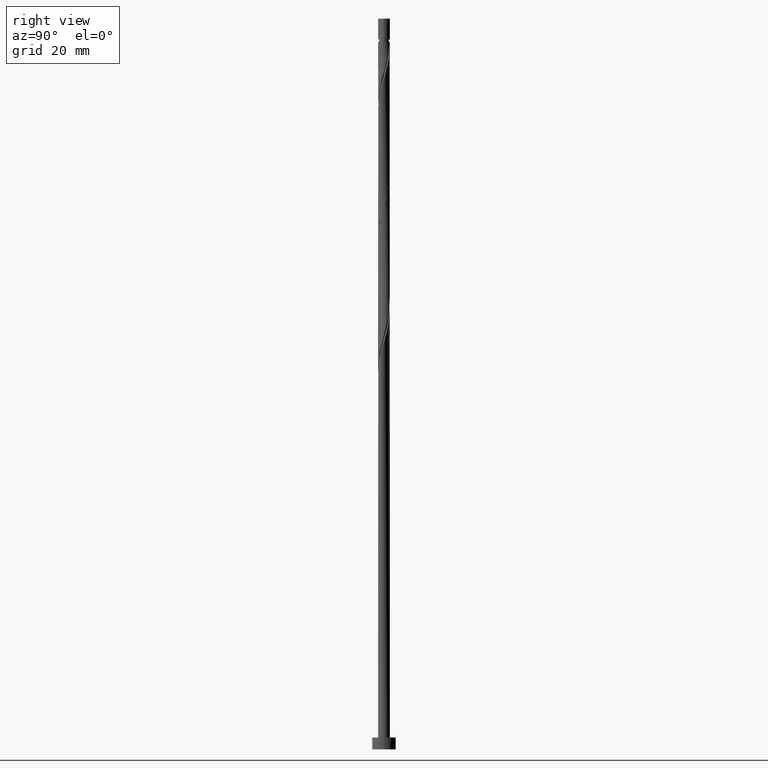
[diagram: clean part render]
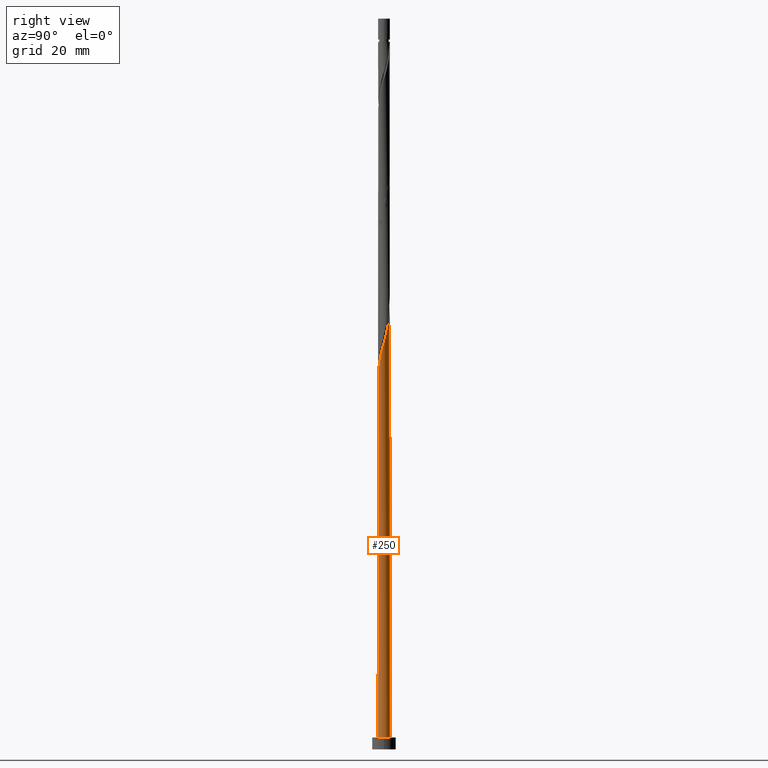
[diagram: same view with one face highlighted and labeled with its STEP entity id]
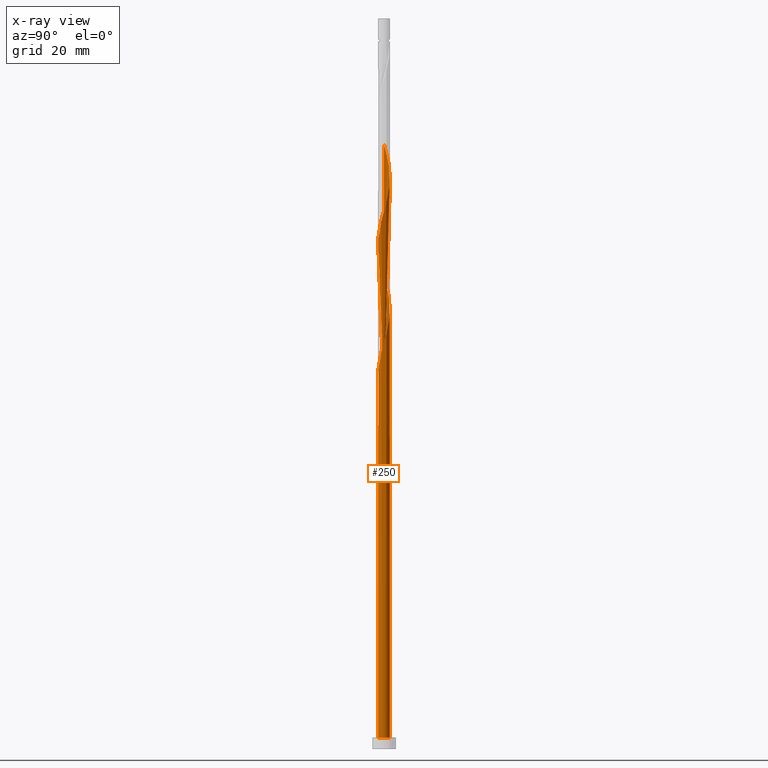
[diagram: x-ray of the same camera — body ghosted, the highlighted face saturated]
A machine part, right view. The second image highlights one B-rep face of the part: STEP entity #250.
The next image is the same camera in x-ray: the body ghosted, the highlighted face saturated — about 0% of this face is hidden behind the body in this view.
In plain terms, the highlighted cylindrical surface (bore or boss wall) has radius 1.5 mm, axis along (-0, -0, -1).
Its self-contained STEP definition (entity closure, byte-faithful):
#8 = CARTESIAN_POINT ( 'NONE',  ( -1.500000000000000666, -2.033714684332305775E-15, 88.19879343098972413 ) ) ;
#29 = CARTESIAN_POINT ( 'NONE',  ( -1.250515677536281789, 0.8283782591521714478, 149.6352267757796426 ) ) ;
#48 = EDGE_CURVE ( 'NONE', #1031, #288, #1270, .T. ) ;
#58 = CARTESIAN_POINT ( 'NONE',  ( 0.2892446148792533478, 1.485037173957476808, 110.0518934424463140 ) ) ;
#62 = ORIENTED_EDGE ( 'NONE', *, *, #1277, .F. ) ;
#67 = CARTESIAN_POINT ( 'NONE',  ( 0.8455530274166268567, -1.254606684622249890, 97.55189344244634242 ) ) ;
#68 = CARTESIAN_POINT ( 'NONE',  ( 1.123809227997134341, 0.9935053190942124690, 139.9130045535574709 ) ) ;
#73 = CARTESIAN_POINT ( 'NONE',  ( 0.8283782591521714478, 1.250515677536281345, 107.9685601091129854 ) ) ;
#79 = CARTESIAN_POINT ( 'NONE',  ( -0.4920254025854592372, 1.430702225651051762, 146.1630045535574141 ) ) ;
#80 = CARTESIAN_POINT ( 'NONE',  ( -0.4920254025854592372, 1.430702225651051762, 112.8296712202240997 ) ) ;
#96 = CARTESIAN_POINT ( 'NONE',  ( -1.123809227997133231, -0.9935053190942132462, 123.2463378868907853 ) ) ;
#106 = CARTESIAN_POINT ( 'NONE',  ( 0.4920254025854589042, -1.430702225651052428, 129.4963378868907284 ) ) ;
#108 = DIRECTION ( 'NONE',  ( -0.000000000000000000, -0.000000000000000000, -1.000000000000000000 ) ) ;
#113 = CARTESIAN_POINT ( 'NONE',  ( -1.342654455136648162, 0.6687892150010430470, 85.74633788689078528 ) ) ;
#114 = CARTESIAN_POINT ( 'NONE',  ( -0.8283782591521714478, -1.250515677536281345, 124.6352267757796426 ) ) ;
#122 = CARTESIAN_POINT ( 'NONE',  ( -1.123809227997131455, 0.9935053190942124690, 84.35744899800187113 ) ) ;
#144 = ORIENTED_EDGE ( 'NONE', *, *, #698, .T. ) ;
#171 = DIRECTION ( 'NONE',  ( 0.000000000000000000, 0.000000000000000000, 1.000000000000000000 ) ) ;
#181 = CARTESIAN_POINT ( 'NONE',  ( -1.470000000000002416, -0.2984962311319870332, 87.13522677577964259 ) ) ;
#185 = CARTESIAN_POINT ( 'NONE',  ( -1.430702225651052428, -0.4920254025854589042, 87.82967122022408546 ) ) ;
#186 = CARTESIAN_POINT ( 'NONE',  ( -0.9930117713720179040, -1.141457610771798858, 123.9407823313351997 ) ) ;
#192 = CARTESIAN_POINT ( 'NONE',  ( 0.9935053190942132462, -1.123809227997133231, 98.24633788689075686 ) ) ;
#193 = CARTESIAN_POINT ( 'NONE',  ( -0.6687892150010432690, 1.342654455136650826, 113.5241156646685567 ) ) ;
#201 = CARTESIAN_POINT ( 'NONE',  ( -0.2984962311319867556, 1.470000000000002416, 112.1352267757796852 ) ) ;
#207 = CARTESIAN_POINT ( 'NONE',  ( -1.470000000000000195, 0.2984962311319869777, 87.13522677577965680 ) ) ;
#218 = CARTESIAN_POINT ( 'NONE',  ( -1.430702225651049320, 0.4920254025854589042, 86.44078233133521394 ) ) ;
#226 = VERTEX_POINT ( 'NONE', #1481 ) ;
#229 = CARTESIAN_POINT ( 'NONE',  ( 0.8455530274166268567, -1.254606684622249890, 130.8852267757796426 ) ) ;
#240 = CARTESIAN_POINT ( 'NONE',  ( -1.497167474153214384, 0.09213877760036907894, 85.74633788689072844 ) ) ;
#241 = CARTESIAN_POINT ( 'NONE',  ( -1.141457610771799080, 0.9930117713720176820, 115.6074489980018711 ) ) ;
#248 = CARTESIAN_POINT ( 'NONE',  ( 0.1049670596785149818, 1.509297774348950627, 79.49633788689075686 ) ) ;
#250 = ADVANCED_FACE ( 'NONE', ( #1356 ), #461, .T. ) ;
#285 = CARTESIAN_POINT ( 'NONE',  ( -1.359573744300764053, 0.6637447469323254357, 150.3296712202241281 ) ) ;
#288 = VERTEX_POINT ( 'NONE', #1487 ) ;
#291 = CARTESIAN_POINT ( 'NONE',  ( 1.500000000000000222, 0.000000000000000000, 3.000000000000000000 ) ) ;
#296 = VERTEX_POINT ( 'NONE', #1128 ) ;
#306 = CARTESIAN_POINT ( 'NONE',  ( -1.342654455136650826, -0.6687892150010431580, 88.52411566466854254 ) ) ;
#310 = CARTESIAN_POINT ( 'NONE',  ( 0.09213877760037003650, 1.497167474153214384, 110.7463378868907569 ) ) ;
#311 = CARTESIAN_POINT ( 'NONE',  ( -1.254606684622249890, -0.8455530274166273008, 122.5518934424463282 ) ) ;
#318 = CARTESIAN_POINT ( 'NONE',  ( 1.497167474153214384, -0.09213877760036998099, 135.7463378868907569 ) ) ;
#325 = CARTESIAN_POINT ( 'NONE',  ( 0.4764946809057895583, 1.422305459129119987, 109.3574489980018569 ) ) ;
#349 = CARTESIAN_POINT ( 'NONE',  ( 0.2984962311319872552, 1.469999999999999973, 78.80189344244631400 ) ) ;
#353 = CARTESIAN_POINT ( 'NONE',  ( -1.497167474153214384, 0.09213877760036907894, 119.0796712202240712 ) ) ;
#358 = CARTESIAN_POINT ( 'NONE',  ( -0.2984962311319867001, 1.470000000000002194, 78.80189344244631400 ) ) ;
#369 = CARTESIAN_POINT ( 'NONE',  ( -1.500000000000000444, -2.033714684332305775E-15, 88.19879343098972413 ) ) ;
#384 = CARTESIAN_POINT ( 'NONE',  ( 0.000000000000000000, 0.000000000000000000, 3.000000000000000000 ) ) ;
#390 =( BOUNDED_CURVE ( )  B_SPLINE_CURVE ( 2, ( #358, #970, #1000, #839, #867, #1469, #1368, #1358, #1237, #732, #240, #749, #1107 ),
 .UNSPECIFIED., .F., .T. ) 
 B_SPLINE_CURVE_WITH_KNOTS ( ( 3, 2, 2, 2, 2, 2, 3 ),
 ( 0.000000000000000000, 0.01041666666666662966, 0.02083333333333337034, 0.03125000000000000000, 0.04166666666666662966, 0.05208333333333337034, 0.05453176698144632933 ),
 .UNSPECIFIED. ) 
 CURVE ( )  GEOMETRIC_REPRESENTATION_ITEM ( )  RATIONAL_B_SPLINE_CURVE ( ( 0.9090909090909415902, 0.9013135103398597359, 0.9090909090909415902, 0.9013135103398597359, 0.9090909090909415902, 0.9013135103398597359, 0.9090909090909415902, 0.9013135103398597359, 0.9090909090909415902, 0.9013135103398597359, 0.9090909090909415902, 0.9072628343904353132, 0.9062941362546617086 ) ) 
 REPRESENTATION_ITEM ( '' )  );
#435 = CARTESIAN_POINT ( 'NONE',  ( 0.2892446148792533478, 1.485037173957476808, 143.3852267757796426 ) ) ;
#436 = CARTESIAN_POINT ( 'NONE',  ( 0.6687892150010429360, -1.342654455136651048, 96.85744899800188534 ) ) ;
#438 = CARTESIAN_POINT ( 'NONE',  ( 0.6687892150010429360, -1.342654455136651048, 130.1907823313352139 ) ) ;
#444 = CARTESIAN_POINT ( 'NONE',  ( 1.141457610771798858, -0.9930117713720179040, 98.94078233133518552 ) ) ;
#446 = CARTESIAN_POINT ( 'NONE',  ( -1.470000000000002416, -0.2984962311319870332, 120.4685601091129996 ) ) ;
#452 =( BOUNDED_CURVE ( )  B_SPLINE_CURVE ( 2, ( #369, #499, #207, #218, #113, #740, #122, #1483, #1458, #614, #962, #1345, #492, #248, #642 ),
 .UNSPECIFIED., .F., .T. ) 
 B_SPLINE_CURVE_WITH_KNOTS ( ( 3, 2, 2, 2, 2, 2, 2, 3 ),
 ( 0.9295317669814462391, 0.9375000000000000000, 0.9479166666666666297, 0.9583333333333333703, 0.9687500000000000000, 0.9791666666666666297, 0.9895833333333333703, 1.000000000000000000 ),
 .UNSPECIFIED. ) 
 CURVE ( )  GEOMETRIC_REPRESENTATION_ITEM ( )  RATIONAL_B_SPLINE_CURVE ( ( 0.9062941362546560464, 0.9031415850403601286, 0.9090909090909357060, 0.9013135103398539627, 0.9090909090909357060, 0.9013135103398539627, 0.9090909090909357060, 0.9013135103398539627, 0.9090909090909357060, 0.9013135103398539627, 0.9090909090909357060, 0.9013135103398539627, 0.9090909090909357060, 0.9013135103398539627, 0.9090909090909357060 ) ) 
 REPRESENTATION_ITEM ( '' )  );
#458 = CARTESIAN_POINT ( 'NONE',  ( -0.8455530274166278559, 1.254606684622249890, 147.5518934424462998 ) ) ;
#461 = CYLINDRICAL_SURFACE ( 'NONE', #1441, 1.500000000000000222 ) ;
#467 = DIRECTION ( 'NONE',  ( 0.000000000000000000, -0.000000000000000000, -1.000000000000000000 ) ) ;
#484 = CARTESIAN_POINT ( 'NONE',  ( -1.359573744300764053, 0.6637447469323254357, 116.9963378868907427 ) ) ;
#492 = CARTESIAN_POINT ( 'NONE',  ( -0.09213877760036841280, 1.497167474153212829, 80.19078233133519973 ) ) ;
#493 = CARTESIAN_POINT ( 'NONE',  ( 1.342654455136651048, 0.6687892150010429360, 138.5241156646684999 ) ) ;
#498 = ORIENTED_EDGE ( 'NONE', *, *, #679, .F. ) ;
#499 = CARTESIAN_POINT ( 'NONE',  ( -1.500000000000000888, 0.1507556722888814815, 87.66536706180046679 ) ) ;
#501 = CARTESIAN_POINT ( 'NONE',  ( -1.342654455136650826, -0.6687892150010431580, 121.8574489980018853 ) ) ;
#515 = EDGE_LOOP ( 'NONE', ( #1609, #62, #923, #877, #890, #498, #1271, #144, #1622 ) ) ;
#523 = CARTESIAN_POINT ( 'NONE',  ( 0.000000000000000000, 0.000000000000000000, 3.000000000000000000 ) ) ;
#537 = DIRECTION ( 'NONE',  ( 0.000000000000000000, 0.000000000000000000, 1.000000000000000000 ) ) ;
#550 = LINE ( 'NONE', #1046, #1004 ) ;
#552 = CARTESIAN_POINT ( 'NONE',  ( -0.1049670596785133442, 1.509297774348953070, 144.7741156646685567 ) ) ;
#575 = CARTESIAN_POINT ( 'NONE',  ( -1.254606684622249890, -0.8455530274166273008, 89.21856010911297119 ) ) ;
#576 = CARTESIAN_POINT ( 'NONE',  ( -0.8455530274166278559, 1.254606684622249890, 114.2185601091129712 ) ) ;
#582 = CARTESIAN_POINT ( 'NONE',  ( 1.470000000000002416, 0.2984962311319868111, 103.8018934424463424 ) ) ;
#584 = CARTESIAN_POINT ( 'NONE',  ( 0.6637447469323259908, 1.359573744300764053, 141.9963378868907284 ) ) ;
#590 = CARTESIAN_POINT ( 'NONE',  ( 0.6637447469323259908, 1.359573744300764053, 108.6630045535574141 ) ) ;
#596 = CARTESIAN_POINT ( 'NONE',  ( 1.509297774348953070, 0.1049670596785135107, 103.1074489980018711 ) ) ;
#614 = CARTESIAN_POINT ( 'NONE',  ( -0.6637447469323241034, 1.359573744300762055, 82.27411566466854254 ) ) ;
#616 = CARTESIAN_POINT ( 'NONE',  ( -0.09213877760036917608, -1.497167474153214384, 127.4130045535573998 ) ) ;
#626 = CARTESIAN_POINT ( 'NONE',  ( 1.509297774348953070, 0.1049670596785135107, 136.4407823313351855 ) ) ;
#634 = CARTESIAN_POINT ( 'NONE',  ( -1.500000000000000222, 0.000000000000000000, 184.6699999999999875 ) ) ;
#636 = CARTESIAN_POINT ( 'NONE',  ( 1.359573744300764053, -0.6637447469323257687, 133.6630045535574141 ) ) ;
#642 = CARTESIAN_POINT ( 'NONE',  ( 0.2984962311319872552, 1.469999999999999973, 78.80189344244631400 ) ) ;
#651 = VERTEX_POINT ( 'NONE', #1228 ) ;
#655 = CARTESIAN_POINT ( 'NONE',  ( -1.497167474153214384, 0.09213877760036907894, 152.4130045535574709 ) ) ;
#677 =( BOUNDED_CURVE ( )  B_SPLINE_CURVE ( 2, ( #1331, #1201, #181, #185, #306, #575, #1310, #1587, #1427, #814, #825, #1566, #707, #806, #694, #714, #436, #67, #192, #444, #1324, #1068, #1194, #940, #955, #596, #582, #1451, #1433, #1581, #947, #1216, #73, #590, #325, #58, #310, #1316, #201, #80, #193, #576, #1318, #241, #869, #484, #985, #1246, #353, #1354, #446, #1485, #501, #311, #96, #186, #114, #1610, #700, #949, #616, #860, #1070, #106, #438, #229, #941, #1442, #742, #636, #1568, #751, #318, #626, #1125, #1325, #493, #1435, #68, #816, #991, #584, #1078, #435, #1200, #552, #939, #79, #954, #458, #964, #1460, #29, #285, #1391, #775, #655, #1137, #1003 ),
 .UNSPECIFIED., .F., .T. ) 
 B_SPLINE_CURVE_WITH_KNOTS ( ( 3, 2, 2, 2, 2, 2, 2, 2, 2, 2, 2, 2, 2, 2, 2, 2, 2, 2, 2, 2, 2, 2, 2, 2, 2, 2, 2, 2, 2, 2, 2, 2, 2, 2, 2, 2, 2, 2, 2, 2, 2, 2, 2, 2, 2, 2, 2, 2, 2, 3 ),
 ( 0.05453176698144632240, 0.06250000000000000000, 0.07291666666666662966, 0.08333333333333337034, 0.09375000000000000000, 0.1041666666666666297, 0.1145833333333333703, 0.1250000000000000000, 0.1354166666666666297, 0.1458333333333333703, 0.1562500000000000000, 0.1666666666666666297, 0.1770833333333333703, 0.1875000000000000000, 0.1979166666666666297, 0.2083333333333333703, 0.2187500000000000000, 0.2291666666666666297, 0.2395833333333333703, 0.2500000000000000000, 0.2604166666666666297, 0.2708333333333333703, 0.2812500000000000000, 0.2916666666666666297, 0.3020833333333333703, 0.3125000000000000000, 0.3229166666666666297, 0.3333333333333333703, 0.3437500000000000000, 0.3541666666666666297, 0.3645833333333333703, 0.3750000000000000000, 0.3854166666666666297, 0.3958333333333333703, 0.4062500000000000000, 0.4166666666666666297, 0.4270833333333333703, 0.4375000000000000000, 0.4479166666666666297, 0.4583333333333333703, 0.4687500000000000000, 0.4791666666666666297, 0.4895833333333333703, 0.5000000000000000000, 0.5104166666666667407, 0.5208333333333332593, 0.5312500000000000000, 0.5416666666666667407, 0.5520833333333332593, 0.5545317669814464612 ),
 .UNSPECIFIED. ) 
 CURVE ( )  GEOMETRIC_REPRESENTATION_ITEM ( )  RATIONAL_B_SPLINE_CURVE ( ( 0.9062941362546617086, 0.9031415850403660128, 0.9090909090909415902, 0.9013135103398597359, 0.9090909090909415902, 0.9013135103398597359, 0.9090909090909415902, 0.9013135103398597359, 0.9090909090909415902, 0.9013135103398597359, 0.9090909090909415902, 0.9013135103398597359, 0.9090909090909415902, 0.9013135103398597359, 0.9090909090909415902, 0.9013135103398597359, 0.9090909090909415902, 0.9013135103398597359, 0.9090909090909415902, 0.9013135103398597359, 0.9090909090909415902, 0.9013135103398597359, 0.9090909090909415902, 0.9013135103398597359, 0.9090909090909415902, 0.9013135103398597359, 0.9090909090909415902, 0.9013135103398597359, 0.9090909090909415902, 0.9013135103398597359, 0.9090909090909415902, 0.9013135103398597359, 0.9090909090909415902, 0.9013135103398597359, 0.9090909090909415902, 0.9013135103398597359, 0.9090909090909415902, 0.9013135103398597359, 0.9090909090909415902, 0.9013135103398597359, 0.9090909090909415902, 0.9013135103398597359, 0.9090909090909415902, 0.9013135103398597359, 0.9090909090909415902, 0.9013135103398597359, 0.9090909090909415902, 0.9013135103398597359, 0.9090909090909415902, 0.9013135103398597359, 0.9090909090909415902, 0.9013135103398597359, 0.9090909090909415902, 0.9013135103398597359, 0.9090909090909415902, 0.9013135103398597359, 0.9090909090909415902, 0.9013135103398597359, 0.9090909090909415902, 0.9013135103398597359, 0.9090909090909415902, 0.9013135103398597359, 0.9090909090909415902, 0.9013135103398597359, 0.9090909090909415902, 0.9013135103398597359, 0.9090909090909415902, 0.9013135103398597359, 0.9090909090909415902, 0.9013135103398597359, 0.9090909090909415902, 0.9013135103398597359, 0.9090909090909415902, 0.9013135103398597359, 0.9090909090909415902, 0.9013135103398597359, 0.9090909090909415902, 0.9013135103398597359, 0.9090909090909415902, 0.9013135103398597359, 0.9090909090909415902, 0.9013135103398597359, 0.9090909090909415902, 0.9013135103398597359, 0.9090909090909415902, 0.9013135103398597359, 0.9090909090909415902, 0.9013135103398597359, 0.9090909090909415902, 0.9013135103398597359, 0.9090909090909415902, 0.9013135103398597359, 0.9090909090909415902, 0.9013135103398597359, 0.9090909090909415902, 0.9013135103398597359, 0.9090909090909415902, 0.9072628343904350912, 0.9062941362546617086 ) ) 
 REPRESENTATION_ITEM ( '' )  );
#679 = EDGE_CURVE ( 'NONE', #651, #288, #1100, .T. ) ;
#681 = DIRECTION ( 'NONE',  ( 1.000000000000000000, 0.000000000000000000, 0.000000000000000000 ) ) ;
#694 = CARTESIAN_POINT ( 'NONE',  ( 0.2984962311319869221, -1.470000000000002416, 95.46856010911295698 ) ) ;
#698 = EDGE_CURVE ( 'NONE', #296, #847, #932, .T. ) ;
#700 = CARTESIAN_POINT ( 'NONE',  ( -0.4764946809057893917, -1.422305459129119987, 126.0241156646685283 ) ) ;
#707 = CARTESIAN_POINT ( 'NONE',  ( -0.09213877760036917608, -1.497167474153214384, 94.07967122022409967 ) ) ;
#714 = CARTESIAN_POINT ( 'NONE',  ( 0.4920254025854589042, -1.430702225651052428, 96.16300455355742827 ) ) ;
#723 = VECTOR ( 'NONE', #879, 1000.000000000000000 ) ;
#732 = CARTESIAN_POINT ( 'NONE',  ( -1.485037173957477030, 0.2892446148792525706, 85.05189344244631400 ) ) ;
#740 = CARTESIAN_POINT ( 'NONE',  ( -1.254606684622247226, 0.8455530274166267457, 85.05189344244629979 ) ) ;
#742 = CARTESIAN_POINT ( 'NONE',  ( 1.250515677536281123, -0.8283782591521721139, 132.9685601091129854 ) ) ;
#749 = CARTESIAN_POINT ( 'NONE',  ( -1.500000000000001776, 0.04611292748650985124, 85.90849643254139778 ) ) ;
#750 = EDGE_CURVE ( 'NONE', #1410, #847, #452, .T. ) ;
#751 = CARTESIAN_POINT ( 'NONE',  ( 1.485037173957476808, -0.2892446148792533478, 135.0518934424462998 ) ) ;
#767 = EDGE_CURVE ( 'NONE', #296, #651, #390, .T. ) ;
#775 = CARTESIAN_POINT ( 'NONE',  ( -1.485037173957477030, 0.2892446148792525706, 151.7185601091129570 ) ) ;
#806 = CARTESIAN_POINT ( 'NONE',  ( 0.1049670596785142740, -1.509297774348953070, 94.77411566466851411 ) ) ;
#814 = CARTESIAN_POINT ( 'NONE',  ( -0.6637447469323257687, -1.359573744300764275, 91.99633788689077107 ) ) ;
#816 = CARTESIAN_POINT ( 'NONE',  ( 0.9930117713720185701, 1.141457610771798192, 140.6074489980018711 ) ) ;
#825 = CARTESIAN_POINT ( 'NONE',  ( -0.4764946809057893917, -1.422305459129119987, 92.69078233133524236 ) ) ;
#828 = AXIS2_PLACEMENT_3D ( 'NONE', #523, #171, #681 ) ;
#839 = CARTESIAN_POINT ( 'NONE',  ( -0.8455530274166278559, 1.254606684622249890, 80.88522677577965680 ) ) ;
#847 = VERTEX_POINT ( 'NONE', #349 ) ;
#860 = CARTESIAN_POINT ( 'NONE',  ( 0.1049670596785142740, -1.509297774348953070, 128.1074489980018427 ) ) ;
#867 = CARTESIAN_POINT ( 'NONE',  ( -0.9935053190942132462, 1.123809227997133231, 81.57967122022408546 ) ) ;
#869 = CARTESIAN_POINT ( 'NONE',  ( -1.250515677536281789, 0.8283782591521714478, 116.3018934424463282 ) ) ;
#877 = ORIENTED_EDGE ( 'NONE', *, *, #1173, .T. ) ;
#879 = DIRECTION ( 'NONE',  ( -0.000000000000000000, -0.000000000000000000, -1.000000000000000000 ) ) ;
#890 = ORIENTED_EDGE ( 'NONE', *, *, #48, .T. ) ;
#894 = DIRECTION ( 'NONE',  ( 1.000000000000000000, 0.000000000000000000, 0.000000000000000000 ) ) ;
#918 = EDGE_CURVE ( 'NONE', #226, #1410, #550, .T. ) ;
#923 = ORIENTED_EDGE ( 'NONE', *, *, #679, .T. ) ;
#932 = CIRCLE ( 'NONE', #1044, 1.500000000000000222 ) ;
#939 = CARTESIAN_POINT ( 'NONE',  ( -0.2984962311319867556, 1.470000000000002416, 145.4685601091129854 ) ) ;
#940 = CARTESIAN_POINT ( 'NONE',  ( 1.485037173957476808, -0.2892446148792533478, 101.7185601091129712 ) ) ;
#941 = CARTESIAN_POINT ( 'NONE',  ( 0.9935053190942132462, -1.123809227997133231, 131.5796712202240997 ) ) ;
#947 = CARTESIAN_POINT ( 'NONE',  ( 1.123809227997134341, 0.9935053190942124690, 106.5796712202240712 ) ) ;
#949 = CARTESIAN_POINT ( 'NONE',  ( -0.2892446148792525706, -1.485037173957477030, 126.7185601091129712 ) ) ;
#954 = CARTESIAN_POINT ( 'NONE',  ( -0.6687892150010432690, 1.342654455136650826, 146.8574489980018711 ) ) ;
#955 = CARTESIAN_POINT ( 'NONE',  ( 1.497167474153214384, -0.09213877760036998099, 102.4130045535574283 ) ) ;
#962 = CARTESIAN_POINT ( 'NONE',  ( -0.4764946809057878929, 1.422305459129118654, 81.57967122022411388 ) ) ;
#964 = CARTESIAN_POINT ( 'NONE',  ( -0.9935053190942132462, 1.123809227997133231, 148.2463378868907853 ) ) ;
#965 = CARTESIAN_POINT ( 'NONE',  ( 0.000000000000000000, 0.000000000000000000, 184.6699999999999875 ) ) ;
#970 = CARTESIAN_POINT ( 'NONE',  ( -0.4920254025854592372, 1.430702225651051762, 79.49633788689074265 ) ) ;
#985 = CARTESIAN_POINT ( 'NONE',  ( -1.422305459129120209, 0.4764946809057891697, 117.6907823313351713 ) ) ;
#989 = CARTESIAN_POINT ( 'NONE',  ( 0.000000000000000000, 0.000000000000000000, 78.80189344244631400 ) ) ;
#991 = CARTESIAN_POINT ( 'NONE',  ( 0.8283782591521714478, 1.250515677536281345, 141.3018934424463282 ) ) ;
#1000 = CARTESIAN_POINT ( 'NONE',  ( -0.6687892150010432690, 1.342654455136650826, 80.19078233133521394 ) ) ;
#1003 = CARTESIAN_POINT ( 'NONE',  ( -1.500000000000002220, -9.645190966134766424E-16, 152.7383267872363035 ) ) ;
#1004 = VECTOR ( 'NONE', #1171, 1000.000000000000000 ) ;
#1031 = VERTEX_POINT ( 'NONE', #291 ) ;
#1044 = AXIS2_PLACEMENT_3D ( 'NONE', #989, #467, #1618 ) ;
#1046 = CARTESIAN_POINT ( 'NONE',  ( -1.500000000000000222, 0.000000000000000000, 184.6699999999999875 ) ) ;
#1068 = CARTESIAN_POINT ( 'NONE',  ( 1.359573744300764053, -0.6637447469323257687, 100.3296712202240997 ) ) ;
#1070 = CARTESIAN_POINT ( 'NONE',  ( 0.2984962311319869221, -1.470000000000002416, 128.8018934424462998 ) ) ;
#1078 = CARTESIAN_POINT ( 'NONE',  ( 0.4764946809057895583, 1.422305459129119987, 142.6907823313352424 ) ) ;
#1100 = LINE ( 'NONE', #634, #723 ) ;
#1107 = CARTESIAN_POINT ( 'NONE',  ( -1.500000000000002442, -1.457993983252930781E-15, 86.07166012056956106 ) ) ;
#1125 = CARTESIAN_POINT ( 'NONE',  ( 1.470000000000002416, 0.2984962311319868111, 137.1352267757796426 ) ) ;
#1128 = CARTESIAN_POINT ( 'NONE',  ( -0.2984962311319867001, 1.470000000000002194, 78.80189344244631400 ) ) ;
#1137 = CARTESIAN_POINT ( 'NONE',  ( -1.500000000000002665, 0.04611292748650563933, 152.5751630992081687 ) ) ;
#1171 = DIRECTION ( 'NONE',  ( -0.000000000000000000, -0.000000000000000000, -1.000000000000000000 ) ) ;
#1173 = EDGE_CURVE ( 'NONE', #288, #1031, #1261, .T. ) ;
#1194 = CARTESIAN_POINT ( 'NONE',  ( 1.422305459129120209, -0.4764946809057895583, 101.0241156646685141 ) ) ;
#1200 = CARTESIAN_POINT ( 'NONE',  ( 0.09213877760037003650, 1.497167474153214384, 144.0796712202240712 ) ) ;
#1201 = CARTESIAN_POINT ( 'NONE',  ( -1.500000000000002442, -0.1507556722888825362, 86.60508648975884682 ) ) ;
#1216 = CARTESIAN_POINT ( 'NONE',  ( 0.9930117713720185701, 1.141457610771798192, 107.2741156646684999 ) ) ;
#1228 = CARTESIAN_POINT ( 'NONE',  ( -1.500000000000002442, -1.457993983252930583E-15, 86.07166012056956106 ) ) ;
#1237 = CARTESIAN_POINT ( 'NONE',  ( -1.422305459129120209, 0.4764946809057891697, 84.35744899800187113 ) ) ;
#1246 = CARTESIAN_POINT ( 'NONE',  ( -1.485037173957477030, 0.2892446148792525706, 118.3852267757796568 ) ) ;
#1261 = CIRCLE ( 'NONE', #1335, 1.500000000000000222 ) ;
#1270 = CIRCLE ( 'NONE', #828, 1.500000000000000222 ) ;
#1271 = ORIENTED_EDGE ( 'NONE', *, *, #767, .F. ) ;
#1277 = EDGE_CURVE ( 'NONE', #651, #226, #677, .T. ) ;
#1310 = CARTESIAN_POINT ( 'NONE',  ( -1.123809227997133231, -0.9935053190942132462, 89.91300455355742827 ) ) ;
#1316 = CARTESIAN_POINT ( 'NONE',  ( -0.1049670596785133442, 1.509297774348953070, 111.4407823313351997 ) ) ;
#1318 = CARTESIAN_POINT ( 'NONE',  ( -0.9935053190942132462, 1.123809227997133231, 114.9130045535574425 ) ) ;
#1324 = CARTESIAN_POINT ( 'NONE',  ( 1.250515677536281123, -0.8283782591521721139, 99.63522677577967102 ) ) ;
#1325 = CARTESIAN_POINT ( 'NONE',  ( 1.430702225651052428, 0.4920254025854587931, 137.8296712202240712 ) ) ;
#1331 = CARTESIAN_POINT ( 'NONE',  ( -1.500000000000002442, -1.457993983252930781E-15, 86.07166012056956106 ) ) ;
#1335 = AXIS2_PLACEMENT_3D ( 'NONE', #384, #537, #894 ) ;
#1345 = CARTESIAN_POINT ( 'NONE',  ( -0.2892446148792517935, 1.485037173957475032, 80.88522677577965680 ) ) ;
#1354 = CARTESIAN_POINT ( 'NONE',  ( -1.509297774348953070, -0.1049670596785147181, 119.7741156646685283 ) ) ;
#1356 = FACE_OUTER_BOUND ( 'NONE', #515, .T. ) ;
#1358 = CARTESIAN_POINT ( 'NONE',  ( -1.359573744300764053, 0.6637447469323254357, 83.66300455355742827 ) ) ;
#1368 = CARTESIAN_POINT ( 'NONE',  ( -1.250515677536281789, 0.8283782591521714478, 82.96856010911295698 ) ) ;
#1391 = CARTESIAN_POINT ( 'NONE',  ( -1.422305459129120209, 0.4764946809057891697, 151.0241156646684999 ) ) ;
#1410 = VERTEX_POINT ( 'NONE', #8 ) ;
#1427 = CARTESIAN_POINT ( 'NONE',  ( -0.8283782591521714478, -1.250515677536281345, 91.30189344244631400 ) ) ;
#1433 = CARTESIAN_POINT ( 'NONE',  ( 1.342654455136651048, 0.6687892150010429360, 105.1907823313351855 ) ) ;
#1435 = CARTESIAN_POINT ( 'NONE',  ( 1.254606684622249890, 0.8455530274166268567, 139.2185601091130138 ) ) ;
#1441 = AXIS2_PLACEMENT_3D ( 'NONE', #965, #108, #1496 ) ;
#1442 = CARTESIAN_POINT ( 'NONE',  ( 1.141457610771798858, -0.9930117713720179040, 132.2741156646685283 ) ) ;
#1451 = CARTESIAN_POINT ( 'NONE',  ( 1.430702225651052428, 0.4920254025854587931, 104.4963378868907569 ) ) ;
#1458 = CARTESIAN_POINT ( 'NONE',  ( -0.8283782591521701155, 1.250515677536280013, 82.96856010911299961 ) ) ;
#1460 = CARTESIAN_POINT ( 'NONE',  ( -1.141457610771799080, 0.9930117713720176820, 148.9407823313352424 ) ) ;
#1469 = CARTESIAN_POINT ( 'NONE',  ( -1.141457610771799080, 0.9930117713720176820, 82.27411566466852832 ) ) ;
#1481 = CARTESIAN_POINT ( 'NONE',  ( -1.500000000000002220, -9.645190966134768396E-16, 152.7383267872363035 ) ) ;
#1483 = CARTESIAN_POINT ( 'NONE',  ( -0.9930117713720162387, 1.141457610771797970, 83.66300455355742827 ) ) ;
#1485 = CARTESIAN_POINT ( 'NONE',  ( -1.430702225651052428, -0.4920254025854589042, 121.1630045535574141 ) ) ;
#1487 = CARTESIAN_POINT ( 'NONE',  ( -1.500000000000000222, 0.000000000000000000, 3.000000000000000000 ) ) ;
#1496 = DIRECTION ( 'NONE',  ( -1.000000000000000000, 0.000000000000000000, 0.000000000000000000 ) ) ;
#1566 = CARTESIAN_POINT ( 'NONE',  ( -0.2892446148792525706, -1.485037173957477030, 93.38522677577964259 ) ) ;
#1568 = CARTESIAN_POINT ( 'NONE',  ( 1.422305459129120209, -0.4764946809057895583, 134.3574489980018427 ) ) ;
#1581 = CARTESIAN_POINT ( 'NONE',  ( 1.254606684622249890, 0.8455530274166268567, 105.8852267757796568 ) ) ;
#1587 = CARTESIAN_POINT ( 'NONE',  ( -0.9930117713720179040, -1.141457610771798858, 90.60744899800187113 ) ) ;
#1609 = ORIENTED_EDGE ( 'NONE', *, *, #918, .F. ) ;
#1610 = CARTESIAN_POINT ( 'NONE',  ( -0.6637447469323257687, -1.359573744300764275, 125.3296712202240997 ) ) ;
#1618 = DIRECTION ( 'NONE',  ( -1.000000000000000000, 0.000000000000000000, 0.000000000000000000 ) ) ;
#1622 = ORIENTED_EDGE ( 'NONE', *, *, #750, .F. ) ;